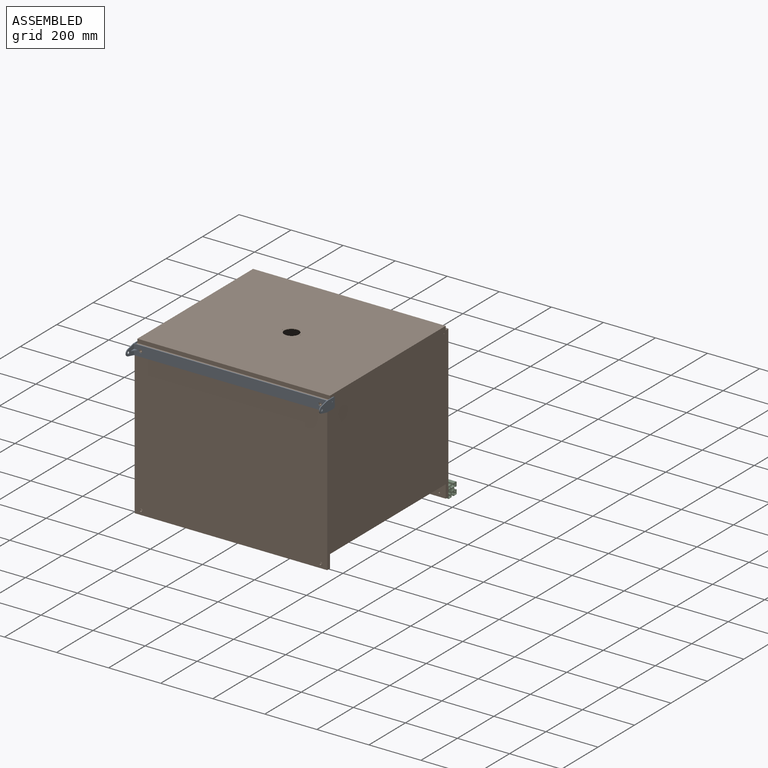
[diagram: assembled view]
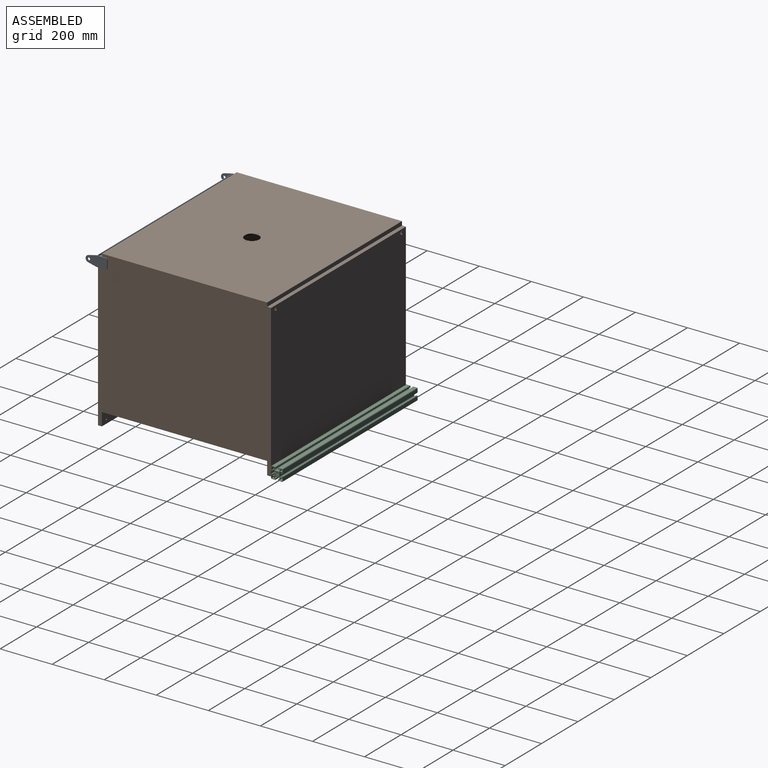
[diagram: assembled view, second angle]
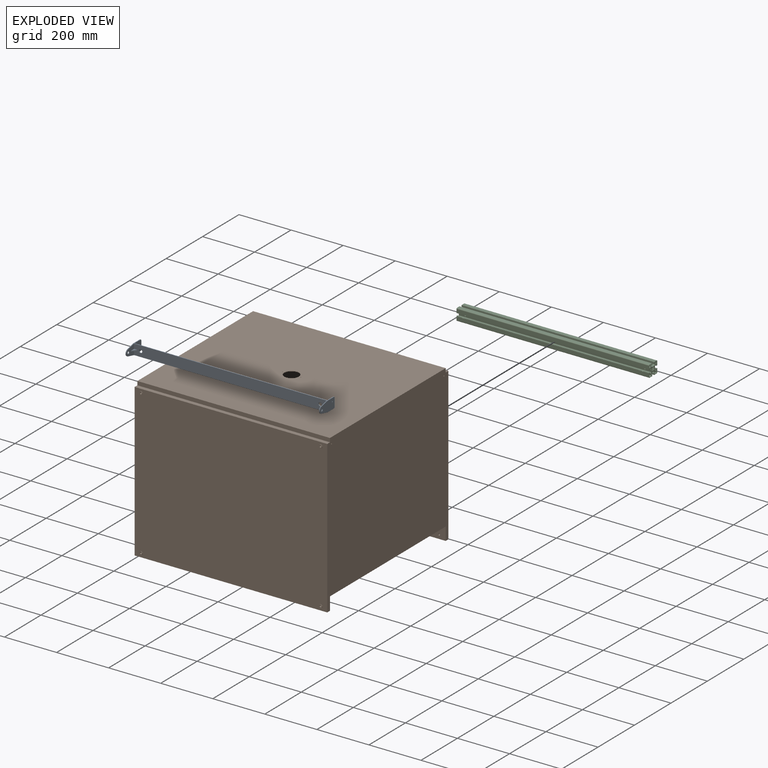
[diagram: exploded view]
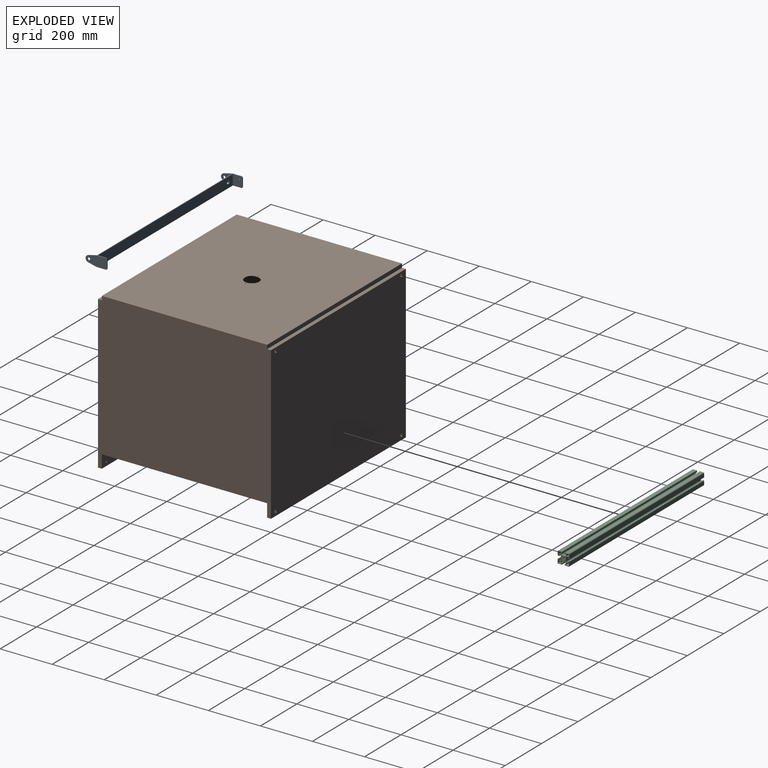
[diagram: exploded view, second angle]
ASSEMBLY  parts=3 mates=6
PART A: 34 faces, bbox 82.5x746x40 mm
  f0: plane 42.5x40mm, normal (0,1,0), area 1105.1mm2, adj f2,f3,f4,f7,f10,f12,f13,f14
  f1: plane 746x35mm, normal (0,0,-1), area 2430mm2, adj f2,f8,f9,f11,f14,f16,f21,f22
  f2: plane 32.9x7.84mm, normal (0.23,0,-0.97), area 101.5mm2, adj f0,f1,f3,f9
  f3: cylinder r=12.5mm len=24.32mm, axis (0,-1,0), area 100.3mm2, adj f0,f2,f4,f9
  f4: plane 32.9x7.84mm, normal (0.23,0,0.97), area 101.5mm2, adj f0,f3,f5,f9
  f5: plane 746x35mm, normal (0,0,1), area 2430mm2, adj f4,f8,f9,f11,f14,f18,f21,f22
  f6: plane 30x3mm, normal (-1,0,0), area 90mm2, adj f8,f9,f32,f33
  f7: cylinder r=5mm len=10mm, axis (0,-1,0), area 94.2mm2, adj f0,f9
  f8: plane 40x37mm, normal (0,1,0), area 1456.7mm2, adj f1,f5,f6,f11,f29,f32,f33
  f9: plane 82.5x40mm, normal (0,-1,0), area 2729.8mm2, adj f1,f2,f3,f4,f5,f6,f7,f29
  f10: plane 16x12mm, normal (0.6,0.8,0), area 60mm2, adj f0,f12,f13,f14
  f11: plane 740x40mm, normal (-1,0,0), area 29334.5mm2, adj f1,f5,f8,f22,f23,f24
  f12: plane 16x12mm, normal (0,0,1), area 96mm2, adj f0,f10,f14
  f13: plane 16x12mm, normal (0,0,-1), area 96mm2, adj f0,f10,f14
  f14: plane 740x40mm, normal (1,0,0), area 29262.5mm2, adj f0,f1,f5,f10,f12,f13,f15,f23
  f15: plane 42.5x40mm, normal (0,-1,0), area 1105.1mm2, adj f14,f16,f18,f19,f20,f25,f26,f27
  f16: plane 32.9x7.84mm, normal (0.23,0,-0.97), area 101.5mm2, adj f1,f15,f20,f21
  f17: plane 30x3mm, normal (-1,0,0), area 90mm2, adj f21,f22,f30,f31
  f18: plane 32.9x7.84mm, normal (0.23,0,0.97), area 101.5mm2, adj f5,f15,f20,f21
  f19: cylinder r=5mm len=10mm, axis (0,-1,0), area 94.2mm2, adj f15,f21
  f20: cylinder r=12.5mm len=24.32mm, axis (0,-1,0), area 100.3mm2, adj f15,f16,f18,f21
  f21: plane 82.5x40mm, normal (0,1,0), area 2729.8mm2, adj f1,f5,f16,f17,f18,f19,f20,f28
  f22: plane 40x37mm, normal (0,-1,0), area 1456.7mm2, adj f1,f5,f11,f17,f28,f30,f31
  f23: cylinder r=6.5mm len=13mm, axis (1,0,0), area 122.5mm2, adj f11,f14
  f24: cylinder r=6.5mm len=13mm, axis (1,0,0), area 122.5mm2, adj f11,f14
  f25: plane 16x12mm, normal (0.6,-0.8,0), area 60mm2, adj f14,f15,f26,f27
  f26: plane 16x12mm, normal (0,0,1), area 96mm2, adj f14,f15,f25
  f27: plane 16x12mm, normal (0,0,-1), area 96mm2, adj f14,f15,f25
  f28: cylinder r=2mm len=4mm, axis (0,-1,0), area 37.7mm2, adj f21,f22
  f29: cylinder r=2mm len=4mm, axis (0,-1,0), area 37.7mm2, adj f8,f9
  f30: cylinder r=5mm len=5mm, axis (0,1,0), area 23.6mm2, adj f1,f17,f21,f22
  f31: cylinder r=5mm len=5mm, axis (0,-1,0), area 23.6mm2, adj f5,f17,f21,f22
  f32: cylinder r=5mm len=5mm, axis (0,-1,0), area 23.6mm2, adj f5,f6,f8,f9
  f33: cylinder r=5mm len=5mm, axis (0,1,0), area 23.6mm2, adj f1,f6,f8,f9
PART B: 89 faces, bbox 668.3x740x600 mm
  f0: cylinder r=3mm len=11.85mm, axis (1,0,0), area 223.4mm2, adj f4,f27
  f1: cylinder r=3mm len=11.7mm, axis (1,0,0), area 220.5mm2, adj f23,f25
  f2: plane 635x2.5mm, normal (0,0,-1), area 1587.5mm2, adj f4,f9,f17,f31
  f3: plane 740x635mm, normal (0,0,1), area 467431.6mm2, adj f8,f9,f35,f56,f86,f87,f88
  f4: plane 740x50mm, normal (-1,0,0), area 36943.5mm2, adj f0,f2,f5,f9,f10,f53,f55,f56
  f5: plane 740x15mm, normal (0,0,-1), area 11100mm2, adj f4,f6,f9,f56
  f6: plane 740x585mm, normal (1,0,0), area 432377.2mm2, adj f5,f7,f9,f18,f20,f56,f58,f60
  f7: plane 740x15mm, normal (0,0,1), area 11100mm2, adj f6,f8,f9,f56
  f8: plane 740x15mm, normal (1,0,0), area 11100mm2, adj f3,f7,f9,f56
  f9: plane 665x600mm, normal (0,1,0), area 366774.9mm2, adj f2,f3,f4,f5,f6,f7,f8,f31
  f10: plane 735x2.5mm, normal (0,0,1), area 1837.5mm2, adj f4,f12,f17,f57
  f11: plane 735x630mm, normal (0,0,-1), area 460581.6mm2, adj f16,f17,f41,f57,f86,f87,f88
  f12: plane 735x47.5mm, normal (1,0,0), area 34651.1mm2, adj f10,f13,f17,f24,f57,f64
  f13: plane 735x10mm, normal (0,0,1), area 7350mm2, adj f12,f14,f17,f57
  f14: plane 735x580mm, normal (-1,0,0), area 425777.2mm2, adj f13,f15,f17,f22,f24,f57,f62,f64
  f15: plane 735x15mm, normal (0,0,-1), area 11025mm2, adj f14,f16,f17,f57
  f16: plane 735x15mm, normal (-1,0,0), area 11025mm2, adj f11,f15,f17,f57
  f17: plane 660x595mm, normal (0,-1,0), area 361824.9mm2, adj f2,f10,f11,f12,f13,f14,f15,f16
  f18: cylinder r=6.45mm len=12.9mm, axis (-1,0,0), area 66.9mm2, adj f6,f19
  f19: plane 12.9x12.9mm, normal (1,0,0), area 92.2mm2, adj f18,f26
  f20: cylinder r=6.45mm len=12.9mm, axis (-1,0,0), area 66.9mm2, adj f6,f21
  f21: plane 12.9x12.9mm, normal (1,0,0), area 92.2mm2, adj f20,f28
  f22: cylinder r=6.45mm len=12.9mm, axis (1,0,0), area 500.5mm2, adj f14,f23
  f23: plane 12.9x12.9mm, normal (-1,0,0), area 102.4mm2, adj f1,f22
  f24: cylinder r=6.45mm len=12.9mm, axis (1,0,0), area 405.3mm2, adj f12,f14
  f25: cone r=0mm half-angle=59deg, axis (1,0,0), area 11.9mm2, adj f1,f26
  f26: cylinder r=3.5mm len=7mm, axis (1,0,0), area 99mm2, adj f19,f25
  f27: cone r=0mm half-angle=59deg, axis (1,0,0), area 11.9mm2, adj f0,f28
  f28: cylinder r=3.5mm len=7mm, axis (1,0,0), area 99mm2, adj f21,f27
  f29: cylinder r=3mm len=11.85mm, axis (-1,0,0), area 223.4mm2, adj f31,f51
  f30: cylinder r=3mm len=11.7mm, axis (-1,0,0), area 220.5mm2, adj f47,f49
  f31: plane 740x50mm, normal (1,0,0), area 36943.5mm2, adj f2,f9,f29,f32,f36,f55,f56,f69
  f32: plane 740x15mm, normal (0,0,-1), area 11100mm2, adj f9,f31,f33,f56
  f33: plane 740x585mm, normal (-1,0,0), area 432377.2mm2, adj f9,f32,f34,f42,f44,f56,f71,f73
  f34: plane 740x15mm, normal (0,0,1), area 11100mm2, adj f9,f33,f35,f56
  f35: plane 740x15mm, normal (-1,0,0), area 11100mm2, adj f3,f9,f34,f56
  f36: plane 735x2.5mm, normal (0,0,1), area 1837.5mm2, adj f17,f31,f37,f57
  f37: plane 735x47.5mm, normal (-1,0,0), area 34651.1mm2, adj f17,f36,f38,f48,f57,f77
  f38: plane 735x10mm, normal (0,0,1), area 7350mm2, adj f17,f37,f39,f57
  f39: plane 735x580mm, normal (1,0,0), area 425777.2mm2, adj f17,f38,f40,f46,f48,f57,f75,f77
  f40: plane 735x15mm, normal (0,0,-1), area 11025mm2, adj f17,f39,f41,f57
  f41: plane 735x15mm, normal (1,0,0), area 11025mm2, adj f11,f17,f40,f57
  f42: cylinder r=6.45mm len=12.9mm, axis (1,0,0), area 66.9mm2, adj f33,f43
  f43: plane 12.9x12.9mm, normal (-1,0,0), area 92.2mm2, adj f42,f50
  f44: cylinder r=6.45mm len=12.9mm, axis (1,0,0), area 66.9mm2, adj f33,f45
  f45: plane 12.9x12.9mm, normal (-1,0,0), area 92.2mm2, adj f44,f52
  f46: cylinder r=6.45mm len=12.9mm, axis (-1,0,0), area 500.5mm2, adj f39,f47
  f47: plane 12.9x12.9mm, normal (1,0,0), area 102.4mm2, adj f30,f46
  f48: cylinder r=6.45mm len=12.9mm, axis (-1,0,0), area 405.3mm2, adj f37,f39
  f49: cone r=0mm half-angle=59deg, axis (-1,0,0), area 11.9mm2, adj f30,f50
  f50: cylinder r=3.5mm len=7mm, axis (-1,0,0), area 99mm2, adj f43,f49
  f51: cone r=0mm half-angle=59deg, axis (-1,0,0), area 11.9mm2, adj f29,f52
  f52: cylinder r=3.5mm len=7mm, axis (-1,0,0), area 99mm2, adj f45,f51
  f53: cylinder r=3mm len=11.85mm, axis (1,0,0), area 223.4mm2, adj f4,f67
  f54: cylinder r=3mm len=11.7mm, axis (1,0,0), area 220.5mm2, adj f63,f65
  f55: plane 635x2.5mm, normal (0,0,-1), area 1587.5mm2, adj f4,f31,f56,f57
  f56: plane 665x600mm, normal (0,-1,0), area 366774.9mm2, adj f3,f4,f5,f6,f7,f8,f31,f32
  f57: plane 660x595mm, normal (0,1,0), area 361824.9mm2, adj f10,f11,f12,f13,f14,f15,f16,f36
  f58: cylinder r=6.45mm len=12.9mm, axis (-1,0,0), area 66.9mm2, adj f6,f59
  f59: plane 12.9x12.9mm, normal (1,0,0), area 92.2mm2, adj f58,f66
  f60: cylinder r=6.45mm len=12.9mm, axis (-1,0,0), area 66.9mm2, adj f6,f61
  f61: plane 12.9x12.9mm, normal (1,0,0), area 92.2mm2, adj f60,f68
  f62: cylinder r=6.45mm len=12.9mm, axis (1,0,0), area 500.5mm2, adj f14,f63
  f63: plane 12.9x12.9mm, normal (-1,0,0), area 102.4mm2, adj f54,f62
  f64: cylinder r=6.45mm len=12.9mm, axis (1,0,0), area 405.3mm2, adj f12,f14
  f65: cone r=0mm half-angle=59deg, axis (1,0,0), area 11.9mm2, adj f54,f66
  f66: cylinder r=3.5mm len=7mm, axis (1,0,0), area 99mm2, adj f59,f65
  f67: cone r=0mm half-angle=59deg, axis (1,0,0), area 11.9mm2, adj f53,f68
  f68: cylinder r=3.5mm len=7mm, axis (1,0,0), area 99mm2, adj f61,f67
  f69: cylinder r=3mm len=11.85mm, axis (-1,0,0), area 223.4mm2, adj f31,f80
  f70: cylinder r=3mm len=11.7mm, axis (-1,0,0), area 220.5mm2, adj f76,f78
  f71: cylinder r=6.45mm len=12.9mm, axis (1,0,0), area 66.9mm2, adj f33,f72
  f72: plane 12.9x12.9mm, normal (-1,0,0), area 92.2mm2, adj f71,f79
  f73: cylinder r=6.45mm len=12.9mm, axis (1,0,0), area 66.9mm2, adj f33,f74
  f74: plane 12.9x12.9mm, normal (-1,0,0), area 92.2mm2, adj f73,f81
  f75: cylinder r=6.45mm len=12.9mm, axis (-1,0,0), area 500.5mm2, adj f39,f76
  f76: plane 12.9x12.9mm, normal (1,0,0), area 102.4mm2, adj f70,f75
  f77: cylinder r=6.45mm len=12.9mm, axis (-1,0,0), area 405.3mm2, adj f37,f39
  f78: cone r=0mm half-angle=59deg, axis (-1,0,0), area 11.9mm2, adj f70,f79
  f79: cylinder r=3.5mm len=7mm, axis (-1,0,0), area 99mm2, adj f72,f78
  f80: cone r=0mm half-angle=59deg, axis (-1,0,0), area 11.9mm2, adj f69,f81
  f81: cylinder r=3.5mm len=7mm, axis (-1,0,0), area 99mm2, adj f74,f80
  f82: cylinder r=2mm len=4mm, axis (0,1,0), area 31.4mm2, adj f56,f57
  f83: cylinder r=2mm len=4mm, axis (0,1,0), area 31.4mm2, adj f9,f17
  f84: cylinder r=2mm len=4mm, axis (0,1,0), area 31.4mm2, adj f56,f57
  f85: cylinder r=2mm len=4mm, axis (0,1,0), area 31.4mm2, adj f9,f17
  f86: cylinder r=27.95mm len=55.9mm, axis (0,0,1), area 439mm2, adj f3,f11
  f87: cylinder r=1.5mm len=3mm, axis (0,0,1), area 23.6mm2, adj f3,f11
  f88: cylinder r=1.5mm len=3mm, axis (0,0,1), area 23.6mm2, adj f3,f11
PART C: 198 faces, bbox 45x740x45 mm
  f0: cylinder r=10.05mm len=23.09mm, axis (0,1,0), area 117.9mm2, adj f75,f125,f162,f192
  f1: cylinder r=10.05mm len=686.18mm, axis (0,1,0), area 3640.7mm2, adj f125,f162,f186,f192
  f2: cylinder r=10.05mm len=23.09mm, axis (0,1,0), area 117.9mm2, adj f51,f75,f97,f195
  f3: cylinder r=10.05mm len=686.18mm, axis (0,1,0), area 3640.7mm2, adj f51,f97,f189,f195
  f4: cylinder r=5mm len=21.9mm, axis (0,1,0), area 42.8mm2, adj f6,f11,f75,f195
  f5: cylinder r=5mm len=683.8mm, axis (0,1,0), area 1342.2mm2, adj f23,f24,f189,f195
  f6: plane 22.15x2.94mm, normal (0.2,0,0.98), area 66mm2, adj f4,f7,f75,f195
  f7: cylinder r=8mm len=740mm, axis (0,1,0), area 2310.5mm2, adj f6,f23,f52,f53,f74,f75,f189,f195
  f8: cylinder r=5mm len=740mm, axis (0,1,0), area 1450.3mm2, adj f53,f54,f74,f75,f191,f197
  f9: cylinder r=5mm len=740mm, axis (0,1,0), area 1450.3mm2, adj f74,f75,f94,f95,f190,f196
  f10: cylinder r=8mm len=740mm, axis (0,1,0), area 2310.5mm2, adj f11,f24,f74,f75,f95,f96,f189,f195
  f11: plane 22.15x2.94mm, normal (0.2,0,-0.98), area 66mm2, adj f4,f10,f75,f195
  f12: cylinder r=5mm len=21.9mm, axis (0,1,0), area 42.8mm2, adj f75,f126,f161,f192
  f13: cylinder r=5mm len=683.8mm, axis (0,1,0), area 1342.2mm2, adj f18,f19,f186,f192
  f14: cylinder r=8mm len=740mm, axis (0,1,0), area 2310.5mm2, adj f18,f26,f74,f75,f126,f127,f186,f192
  f15: cylinder r=5mm len=740mm, axis (0,1,0), area 1450.3mm2, adj f74,f75,f127,f128,f188,f194
  f16: cylinder r=5mm len=740mm, axis (0,1,0), area 1450.3mm2, adj f74,f75,f159,f160,f187,f193
  f17: cylinder r=8mm len=740mm, axis (0,1,0), area 2310.5mm2, adj f19,f27,f74,f75,f160,f161,f186,f192
  f18: plane 684.3x2.94mm, normal (-0.2,0,-0.98), area 2052.1mm2, adj f13,f14,f186,f192
  f19: plane 684.3x2.94mm, normal (-0.2,0,0.98), area 2052.1mm2, adj f13,f17,f186,f192
  f20: cylinder r=10.05mm len=23.09mm, axis (0,1,0), area 117.9mm2, adj f74,f125,f162,f186
  f21: cylinder r=10.05mm len=23.09mm, axis (0,1,0), area 117.9mm2, adj f51,f74,f97,f189
  f22: cylinder r=5mm len=21.9mm, axis (0,1,0), area 42.8mm2, adj f52,f74,f96,f189
  f23: plane 684.3x2.94mm, normal (0.2,0,0.98), area 2052.1mm2, adj f5,f7,f189,f195
  f24: plane 684.3x2.94mm, normal (0.2,0,-0.98), area 2052.1mm2, adj f5,f10,f189,f195
  f25: cylinder r=5mm len=21.9mm, axis (0,1,0), area 42.8mm2, adj f26,f27,f74,f186
  f26: plane 22.15x2.94mm, normal (-0.2,0,-0.98), area 66mm2, adj f14,f25,f74,f186
  f27: plane 22.15x2.94mm, normal (-0.2,0,0.98), area 66mm2, adj f17,f25,f74,f186
  f28: plane 740x13.5mm, normal (1,0,0), area 9987.1mm2, adj f29,f30,f39,f74,f75,f143,f183,f185
  f29: plane 22.63x1mm, normal (0,0,1), area 22.6mm2, adj f28,f75,f139,f185
  f30: plane 685.27x1mm, normal (0,0,1), area 685.3mm2, adj f28,f37,f183,f185
  f31: plane 681.85x5mm, normal (0,0,1), area 3409.3mm2, adj f37,f140,f183,f185
  f32: plane 20.93x5mm, normal (0,0,1), area 104.6mm2, adj f75,f139,f140,f185
  f33: plane 681.85x5mm, normal (0,0,-1), area 3409.3mm2, adj f38,f165,f182,f184
  f34: plane 20.93x5mm, normal (0,0,-1), area 104.6mm2, adj f75,f165,f166,f184
  f35: plane 22.63x1mm, normal (0,0,-1), area 22.6mm2, adj f75,f166,f167,f184
  f36: plane 685.27x1mm, normal (0,0,-1), area 685.3mm2, adj f38,f167,f182,f184
  f37: plane 685.27x1mm, normal (1,0,0), area 683.4mm2, adj f30,f31,f183,f185
  f38: plane 685.27x1mm, normal (1,0,0), area 683.4mm2, adj f33,f36,f182,f184
  f39: plane 22.63x1mm, normal (0,0,1), area 22.6mm2, adj f28,f40,f74,f183
  f40: plane 22.63x1mm, normal (1,0,0), area 21.7mm2, adj f39,f41,f74,f183
  f41: plane 20.93x5mm, normal (0,0,1), area 104.6mm2, adj f40,f74,f140,f183
  f42: plane 20.93x5mm, normal (0,0,-1), area 104.6mm2, adj f43,f74,f165,f182
  f43: plane 22.63x1mm, normal (1,0,0), area 21.7mm2, adj f42,f44,f74,f182
  f44: plane 22.63x1mm, normal (0,0,-1), area 22.6mm2, adj f43,f74,f167,f182
  f45: plane 740x1mm, normal (-1,0,0), area 740mm2, adj f74,f75,f77,f82
  f46: plane 740x10mm, normal (1,0,0), area 7400mm2, adj f74,f75,f77,f78
  f47: plane 740x10mm, normal (0,0,-1), area 7400mm2, adj f74,f75,f78,f79
  f48: plane 740x1mm, normal (0,0,1), area 740mm2, adj f74,f75,f79,f80
  f49: plane 740x4mm, normal (-1,0,0), area 2960mm2, adj f74,f75,f80,f81
  f50: plane 740x2.51mm, normal (-0.71,0,-0.71), area 2623.8mm2, adj f51,f72,f74,f75
  f51: plane 740x4.86mm, normal (-1,0,0), area 3595.9mm2, adj f2,f3,f21,f50,f74,f75,f189,f195
  f52: plane 22.15x2.94mm, normal (0.2,0,0.98), area 66mm2, adj f7,f22,f74,f189
  f53: plane 740x2.49mm, normal (-0.56,0,-0.83), area 2216.1mm2, adj f7,f8,f74,f75,f191,f197
  f54: plane 740x2.49mm, normal (0.83,0,0.56), area 2220mm2, adj f8,f55,f74,f75
  f55: cylinder r=8mm len=740mm, axis (0,1,0), area 2324.8mm2, adj f54,f56,f74,f75
  f56: plane 740x2.94mm, normal (-0.98,0,-0.2), area 2220mm2, adj f55,f57,f74,f75
  f57: cylinder r=5mm len=740mm, axis (0,1,0), area 1453mm2, adj f56,f74,f75,f157
  f58: cylinder r=10.05mm len=740mm, axis (0,1,0), area 3937mm2, adj f59,f74,f75,f156
  f59: plane 740x4.86mm, normal (0,0,1), area 3599.1mm2, adj f58,f60,f74,f75
  f60: plane 740x2.51mm, normal (0.71,0,0.71), area 2623.8mm2, adj f59,f61,f74,f75
  f61: plane 740x4.29mm, normal (1,0,0), area 3176.7mm2, adj f60,f62,f74,f75
  f62: plane 740x5mm, normal (0,0,-1), area 3700mm2, adj f61,f63,f74,f75
  f63: plane 740x5mm, normal (1,0,0), area 3700mm2, adj f62,f64,f74,f75
  f64: plane 740x1mm, normal (0,0,1), area 740mm2, adj f63,f65,f74,f75
  f65: plane 740x1mm, normal (1,0,0), area 740mm2, adj f64,f66,f74,f75
  f66: plane 740x13.5mm, normal (0,0,1), area 9990mm2, adj f65,f74,f75,f76
  f67: plane 740x13.5mm, normal (-1,0,0), area 9990mm2, adj f68,f74,f75,f76
  f68: plane 740x1mm, normal (0,0,-1), area 740mm2, adj f67,f69,f74,f75
  f69: plane 740x1mm, normal (-1,0,0), area 740mm2, adj f68,f70,f74,f75
  f70: plane 740x5mm, normal (0,0,-1), area 3700mm2, adj f69,f71,f74,f75
  f71: plane 740x5mm, normal (1,0,0), area 3700mm2, adj f70,f72,f74,f75
  f72: plane 740x4.29mm, normal (0,0,-1), area 3176.7mm2, adj f50,f71,f74,f75
  f73: plane 740x4mm, normal (0,0,1), area 2960mm2, adj f74,f75,f81,f82
  f74: plane 45x45mm, normal (0,-1,0), area 726.9mm2, adj f7,f8,f9,f10,f14,f15,f16,f17
  f75: plane 45x45mm, normal (0,1,0), area 726.9mm2, adj f0,f2,f4,f6,f7,f8,f9,f10
  f76: cylinder r=3mm len=740mm, axis (0,-1,0), area 3487.2mm2, adj f66,f67,f74,f75
  f77: cylinder r=1.25mm len=740mm, axis (0,-1,0), area 2906mm2, adj f45,f46,f74,f75
  f78: cylinder r=1.25mm len=740mm, axis (0,1,0), area 1453mm2, adj f46,f47,f74,f75
  f79: cylinder r=1.25mm len=740mm, axis (0,-1,0), area 2906mm2, adj f47,f48,f74,f75
  f80: cylinder r=1.25mm len=740mm, axis (0,1,0), area 1453mm2, adj f48,f49,f74,f75
  f81: cylinder r=1.25mm len=740mm, axis (0,-1,0), area 1453mm2, adj f49,f73,f74,f75
  f82: cylinder r=1.25mm len=740mm, axis (0,-1,0), area 1453mm2, adj f45,f73,f74,f75
  f83: plane 740x1mm, normal (0,0,-1), area 740mm2, adj f74,f75,f113,f118
  f84: plane 740x10mm, normal (0,0,1), area 7400mm2, adj f74,f75,f113,f114
  f85: plane 740x10mm, normal (1,0,0), area 7400mm2, adj f74,f75,f114,f115
  f86: plane 740x1mm, normal (-1,0,0), area 740mm2, adj f74,f75,f115,f116
  f87: plane 740x4mm, normal (0,0,-1), area 2960mm2, adj f74,f75,f116,f117
  f88: plane 740x2.51mm, normal (0.71,0,-0.71), area 2623.8mm2, adj f74,f75,f89,f110
  f89: plane 740x4.86mm, normal (0,0,-1), area 3599.1mm2, adj f74,f75,f88,f90
  f90: cylinder r=10.05mm len=740mm, axis (0,1,0), area 3937mm2, adj f74,f75,f89,f131
  f91: cylinder r=5mm len=740mm, axis (0,1,0), area 1453mm2, adj f74,f75,f92,f130
  f92: plane 740x2.94mm, normal (-0.98,0,0.2), area 2220mm2, adj f74,f75,f91,f93
  f93: cylinder r=8mm len=740mm, axis (0,1,0), area 2324.8mm2, adj f74,f75,f92,f94
  f94: plane 740x2.49mm, normal (0.83,0,-0.56), area 2220mm2, adj f9,f74,f75,f93
  f95: plane 740x2.49mm, normal (-0.56,0,0.83), area 2216.1mm2, adj f9,f10,f74,f75,f190,f196
  f96: plane 22.15x2.94mm, normal (0.2,0,-0.98), area 66mm2, adj f10,f22,f74,f189
  f97: plane 740x4.86mm, normal (-1,0,0), area 3595.9mm2, adj f2,f3,f21,f74,f75,f98,f189,f195
  f98: plane 740x2.51mm, normal (-0.71,0,0.71), area 2623.8mm2, adj f74,f75,f97,f99
  f99: plane 740x4.29mm, normal (0,0,1), area 3176.7mm2, adj f74,f75,f98,f100
  f100: plane 740x5mm, normal (1,0,0), area 3700mm2, adj f74,f75,f99,f101
  f101: plane 740x5mm, normal (0,0,1), area 3700mm2, adj f74,f75,f100,f102
  f102: plane 740x1mm, normal (-1,0,0), area 740mm2, adj f74,f75,f101,f103
  f103: plane 740x1mm, normal (0,0,1), area 740mm2, adj f74,f75,f102,f104
  f104: plane 740x13.5mm, normal (-1,0,0), area 9990mm2, adj f74,f75,f103,f112
  f105: plane 740x13.5mm, normal (0,0,-1), area 9990mm2, adj f74,f75,f106,f112
  f106: plane 740x1mm, normal (1,0,0), area 740mm2, adj f74,f75,f105,f107
  f107: plane 740x1mm, normal (0,0,-1), area 740mm2, adj f74,f75,f106,f108
  f108: plane 740x5mm, normal (1,0,0), area 3700mm2, adj f74,f75,f107,f109
  f109: plane 740x5mm, normal (0,0,1), area 3700mm2, adj f74,f75,f108,f110
  f110: plane 740x4.29mm, normal (1,0,0), area 3176.7mm2, adj f74,f75,f88,f109
  f111: plane 740x4mm, normal (-1,0,0), area 2960mm2, adj f74,f75,f117,f118
  f112: cylinder r=3mm len=740mm, axis (0,-1,0), area 3487.2mm2, adj f74,f75,f104,f105
  f113: cylinder r=1.25mm len=740mm, axis (0,-1,0), area 2906mm2, adj f74,f75,f83,f84
  f114: cylinder r=1.25mm len=740mm, axis (0,1,0), area 1453mm2, adj f74,f75,f84,f85
  f115: cylinder r=1.25mm len=740mm, axis (0,-1,0), area 2906mm2, adj f74,f75,f85,f86
  f116: cylinder r=1.25mm len=740mm, axis (0,1,0), area 1453mm2, adj f74,f75,f86,f87
  f117: cylinder r=1.25mm len=740mm, axis (0,-1,0), area 1453mm2, adj f74,f75,f87,f111
  f118: cylinder r=1.25mm len=740mm, axis (0,-1,0), area 1453mm2, adj f74,f75,f83,f111
  f119: plane 740x1mm, normal (1,0,0), area 740mm2, adj f74,f75,f144,f149
  f120: plane 740x10mm, normal (-1,0,0), area 7400mm2, adj f74,f75,f144,f145
  f121: plane 740x10mm, normal (0,0,1), area 7400mm2, adj f74,f75,f145,f146
  f122: plane 740x1mm, normal (0,0,-1), area 740mm2, adj f74,f75,f146,f147
  f123: plane 740x4mm, normal (1,0,0), area 2960mm2, adj f74,f75,f147,f148
  f124: plane 740x2.51mm, normal (0.71,0,0.71), area 2623.8mm2, adj f74,f75,f125,f141
  f125: plane 740x4.86mm, normal (1,0,0), area 3595.9mm2, adj f0,f1,f20,f74,f75,f124,f186,f192
  f126: plane 22.15x2.94mm, normal (-0.2,0,-0.98), area 66mm2, adj f12,f14,f75,f192
  f127: plane 740x2.49mm, normal (0.56,0,0.83), area 2216.1mm2, adj f14,f15,f74,f75,f188,f194
  f128: plane 740x2.49mm, normal (-0.83,0,-0.56), area 2220mm2, adj f15,f74,f75,f129
  f129: cylinder r=8mm len=740mm, axis (0,1,0), area 2324.8mm2, adj f74,f75,f128,f130
  f130: plane 740x2.94mm, normal (0.98,0,0.2), area 2220mm2, adj f74,f75,f91,f129
  f131: plane 740x4.86mm, normal (0,0,-1), area 3599.1mm2, adj f74,f75,f90,f132
  f132: plane 740x2.51mm, normal (-0.71,0,-0.71), area 2623.8mm2, adj f74,f75,f131,f133
  f133: plane 740x4.29mm, normal (-1,0,0), area 3176.7mm2, adj f74,f75,f132,f134
  f134: plane 740x5mm, normal (0,0,1), area 3700mm2, adj f74,f75,f133,f135
  f135: plane 740x5mm, normal (-1,0,0), area 3700mm2, adj f74,f75,f134,f136
  f136: plane 740x1mm, normal (0,0,-1), area 740mm2, adj f74,f75,f135,f137
  f137: plane 740x1mm, normal (-1,0,0), area 740mm2, adj f74,f75,f136,f138
  f138: plane 740x13.5mm, normal (0,0,-1), area 9990mm2, adj f74,f75,f137,f143
  f139: plane 22.63x1mm, normal (1,0,0), area 21.7mm2, adj f29,f32,f75,f185
  f140: plane 740x5mm, normal (-1,0,0), area 3683.9mm2, adj f31,f32,f41,f74,f75,f141,f183,f185
  f141: plane 740x4.29mm, normal (0,0,1), area 3176.7mm2, adj f74,f75,f124,f140
  f142: plane 740x4mm, normal (0,0,-1), area 2960mm2, adj f74,f75,f148,f149
  f143: cylinder r=3mm len=740mm, axis (0,-1,0), area 3487.2mm2, adj f28,f74,f75,f138
  f144: cylinder r=1.25mm len=740mm, axis (0,-1,0), area 2906mm2, adj f74,f75,f119,f120
  f145: cylinder r=1.25mm len=740mm, axis (0,1,0), area 1453mm2, adj f74,f75,f120,f121
  f146: cylinder r=1.25mm len=740mm, axis (0,-1,0), area 2906mm2, adj f74,f75,f121,f122
  f147: cylinder r=1.25mm len=740mm, axis (0,1,0), area 1453mm2, adj f74,f75,f122,f123
  f148: cylinder r=1.25mm len=740mm, axis (0,-1,0), area 1453mm2, adj f74,f75,f123,f142
  f149: cylinder r=1.25mm len=740mm, axis (0,-1,0), area 1453mm2, adj f74,f75,f119,f142
  f150: plane 740x1mm, normal (0,0,1), area 740mm2, adj f74,f75,f176,f181
  f151: plane 740x10mm, normal (0,0,-1), area 7400mm2, adj f74,f75,f176,f177
  f152: plane 740x10mm, normal (-1,0,0), area 7400mm2, adj f74,f75,f177,f178
  f153: plane 740x1mm, normal (1,0,0), area 740mm2, adj f74,f75,f178,f179
  f154: plane 740x4mm, normal (0,0,1), area 2960mm2, adj f74,f75,f179,f180
  f155: plane 740x2.51mm, normal (-0.71,0,0.71), area 2623.8mm2, adj f74,f75,f156,f173
  f156: plane 740x4.86mm, normal (0,0,1), area 3599.1mm2, adj f58,f74,f75,f155
  f157: plane 740x2.94mm, normal (0.98,0,-0.2), area 2220mm2, adj f57,f74,f75,f158
  f158: cylinder r=8mm len=740mm, axis (0,1,0), area 2324.8mm2, adj f74,f75,f157,f159
  f159: plane 740x2.49mm, normal (-0.83,0,0.56), area 2220mm2, adj f16,f74,f75,f158
  f160: plane 740x2.49mm, normal (0.56,0,-0.83), area 2216.1mm2, adj f16,f17,f74,f75,f187,f193
  f161: plane 22.15x2.94mm, normal (-0.2,0,0.98), area 66mm2, adj f12,f17,f75,f192
  f162: plane 740x4.86mm, normal (1,0,0), area 3595.9mm2, adj f0,f1,f20,f74,f75,f163,f186,f192
  f163: plane 740x2.51mm, normal (0.71,0,-0.71), area 2623.8mm2, adj f74,f75,f162,f164
  f164: plane 740x4.29mm, normal (0,0,-1), area 3176.7mm2, adj f74,f75,f163,f165
  f165: plane 740x5mm, normal (-1,0,0), area 3683.9mm2, adj f33,f34,f42,f74,f75,f164,f182,f184
  f166: plane 22.63x1mm, normal (1,0,0), area 21.7mm2, adj f34,f35,f75,f184
  f167: plane 740x13.5mm, normal (1,0,0), area 9987.1mm2, adj f35,f36,f44,f74,f75,f175,f182,f184
  f168: plane 740x13.5mm, normal (0,0,1), area 9990mm2, adj f74,f75,f169,f175
  f169: plane 740x1mm, normal (-1,0,0), area 740mm2, adj f74,f75,f168,f170
  f170: plane 740x1mm, normal (0,0,1), area 740mm2, adj f74,f75,f169,f171
  f171: plane 740x5mm, normal (-1,0,0), area 3700mm2, adj f74,f75,f170,f172
  f172: plane 740x5mm, normal (0,0,-1), area 3700mm2, adj f74,f75,f171,f173
  f173: plane 740x4.29mm, normal (-1,0,0), area 3176.7mm2, adj f74,f75,f155,f172
  f174: plane 740x4mm, normal (1,0,0), area 2960mm2, adj f74,f75,f180,f181
  f175: cylinder r=3mm len=740mm, axis (0,-1,0), area 3487.2mm2, adj f74,f75,f167,f168
  f176: cylinder r=1.25mm len=740mm, axis (0,-1,0), area 2906mm2, adj f74,f75,f150,f151
  f177: cylinder r=1.25mm len=740mm, axis (0,1,0), area 1453mm2, adj f74,f75,f151,f152
  f178: cylinder r=1.25mm len=740mm, axis (0,-1,0), area 2906mm2, adj f74,f75,f152,f153
  f179: cylinder r=1.25mm len=740mm, axis (0,1,0), area 1453mm2, adj f74,f75,f153,f154
  f180: cylinder r=1.25mm len=740mm, axis (0,-1,0), area 1453mm2, adj f74,f75,f154,f174
  f181: cylinder r=1.25mm len=740mm, axis (0,-1,0), area 1453mm2, adj f74,f75,f150,f174
  f182: cylinder r=6.45mm len=8.15mm, axis (1,0,0), area 49mm2, adj f33,f36,f38,f42,f43,f44,f165,f167
  f183: cylinder r=6.45mm len=8.15mm, axis (1,0,0), area 49mm2, adj f28,f30,f31,f37,f39,f40,f41,f140
  f184: cylinder r=6.45mm len=8.15mm, axis (1,0,0), area 49mm2, adj f33,f34,f35,f36,f38,f165,f166,f167
  f185: cylinder r=6.45mm len=8.15mm, axis (1,0,0), area 49mm2, adj f28,f29,f30,f31,f32,f37,f139,f140
  f186: cylinder r=3.25mm len=6.5mm, axis (1,0,0), area 60.1mm2, adj f1,f13,f14,f17,f18,f19,f20,f25
  f187: cylinder r=3.25mm len=3.37mm, axis (1,0,0), area 2.5mm2, adj f16,f160
  f188: cylinder r=3.25mm len=3.37mm, axis (1,0,0), area 2.5mm2, adj f15,f127
  f189: cylinder r=3.25mm len=6.5mm, axis (1,0,0), area 60.1mm2, adj f3,f5,f7,f10,f21,f22,f23,f24
  f190: cylinder r=3.25mm len=3.37mm, axis (1,0,0), area 2.5mm2, adj f9,f95
  f191: cylinder r=3.25mm len=3.37mm, axis (1,0,0), area 2.5mm2, adj f8,f53
  f192: cylinder r=3.25mm len=6.5mm, axis (1,0,0), area 60.1mm2, adj f0,f1,f12,f13,f14,f17,f18,f19
  f193: cylinder r=3.25mm len=3.37mm, axis (1,0,0), area 2.5mm2, adj f16,f160
  f194: cylinder r=3.25mm len=3.37mm, axis (1,0,0), area 2.5mm2, adj f15,f127
  f195: cylinder r=3.25mm len=6.5mm, axis (1,0,0), area 60.1mm2, adj f2,f3,f4,f5,f6,f7,f10,f11
  f196: cylinder r=3.25mm len=3.37mm, axis (1,0,0), area 2.5mm2, adj f9,f95
  f197: cylinder r=3.25mm len=3.37mm, axis (1,0,0), area 2.5mm2, adj f8,f53
PLACE A rot(axis=(0,0,-1),90deg) t=(1606.44,67.3,59.42)mm
PLACE B rot(axis=(0,0,-1),90deg) t=(2349.44,432.8,89.42)mm
PLACE C rot(axis=(0,0,-1),90deg) t=(2349.44,787.8,-495.58)mm
MATE cylindrical B.f60 <-> C.f182  axis (0,1,0) through (1634.44,765.3,-495.58)mm
MATE planar C.f167 <-> B.f33  axis (0,-1,0) through (1979.44,765.3,-482.83)mm
MATE cylindrical A.f24 <-> B.f70  axis (0,1,0) through (1634.44,100.3,59.42)mm
MATE planar C.f74 <-> B.f56  axis (-1,0,0) through (1609.44,780.31,-485.88)mm
MATE planar B.f6 <-> A.f11  axis (0,-1,0) through (1979.44,100.3,-218.08)mm
MATE planar A.f8 <-> B.f56  axis (1,0,0) through (1609.44,137.3,59.42)mm
